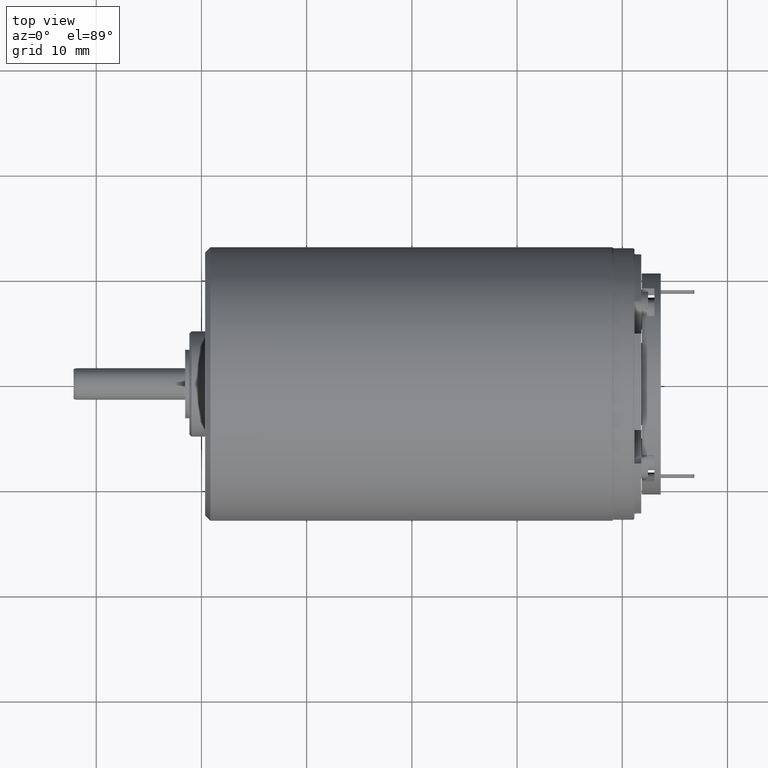
[diagram: clean part render]
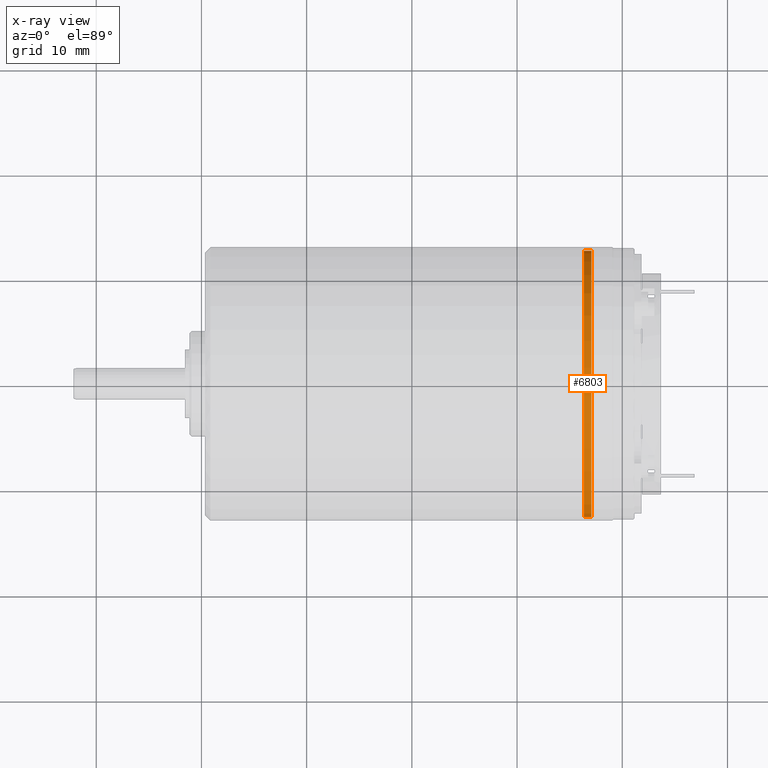
[diagram: x-ray — body ghosted, one internal face saturated and labeled with its STEP entity id]
A machine part, top view, then the same camera in x-ray: the body is ghosted and one INTERNAL B-rep face — a face not visible from any outside direction — is saturated and labeled: STEP entity #6803.
In plain terms, the highlighted cylindrical surface (partial cylindrical patch) has radius 12.65 mm, axis along (1, 0, 0).
Its self-contained STEP definition (entity closure, byte-faithful):
#1868=CARTESIAN_POINT('',(1.635271496615E1,0.E0,0.E0));
#1869=DIRECTION('',(-1.E0,0.E0,0.E0));
#1870=DIRECTION('',(0.E0,-1.E0,0.E0));
#1871=AXIS2_PLACEMENT_3D('',#1868,#1869,#1870);
#1873=CARTESIAN_POINT('',(1.706657684582E1,0.E0,0.E0));
#1874=DIRECTION('',(-1.E0,0.E0,0.E0));
#1875=DIRECTION('',(0.E0,-1.E0,0.E0));
#1876=AXIS2_PLACEMENT_3D('',#1873,#1874,#1875);
#1883=DIRECTION('',(1.E0,4.752798350268E-13,4.961190128392E-13));
#1884=VECTOR('',#1883,7.138618795100E-1);
#1885=CARTESIAN_POINT('',(1.635271496615E1,1.265E1,0.E0));
#1886=LINE('',#1885,#1884);
#1887=DIRECTION('',(-1.E0,4.777682111264E-13,0.E0));
#1888=VECTOR('',#1887,7.138618795100E-1);
#1889=CARTESIAN_POINT('',(1.706657684566E1,-1.265E1,0.E0));
#1890=LINE('',#1889,#1888);
#3758=CARTESIAN_POINT('',(1.706657684582E1,-1.265E1,0.E0));
#3759=VERTEX_POINT('',#3758);
#3760=CARTESIAN_POINT('',(1.635271496615E1,-1.265E1,0.E0));
#3761=CARTESIAN_POINT('',(1.635271496615E1,1.265E1,0.E0));
#3762=VERTEX_POINT('',#3760);
#3763=VERTEX_POINT('',#3761);
#3764=CARTESIAN_POINT('',(1.706657684582E1,1.265E1,0.E0));
#3765=VERTEX_POINT('',#3764);
#6789=CARTESIAN_POINT('',(1.628544638175E1,0.E0,0.E0));
#6790=DIRECTION('',(1.E0,0.E0,0.E0));
#6791=DIRECTION('',(0.E0,-1.E0,0.E0));
#6792=AXIS2_PLACEMENT_3D('',#6789,#6790,#6791);
#6793=CYLINDRICAL_SURFACE('',#6792,1.265E1);
#6794=ORIENTED_EDGE('',*,*,#6783,.F.);
#6796=ORIENTED_EDGE('',*,*,#6795,.F.);
#6798=ORIENTED_EDGE('',*,*,#6797,.T.);
#6800=ORIENTED_EDGE('',*,*,#6799,.F.);
#6801=EDGE_LOOP('',(#6794,#6796,#6798,#6800));
#6802=FACE_OUTER_BOUND('',#6801,.F.);
#6803=ADVANCED_FACE('',(#6802),#6793,.F.);
#1872=CIRCLE('',#1871,1.265E1);
#1877=CIRCLE('',#1876,1.265E1);
#6783=EDGE_CURVE('',#3762,#3763,#1872,.T.);
#6795=EDGE_CURVE('',#3759,#3762,#1890,.T.);
#6797=EDGE_CURVE('',#3759,#3765,#1877,.T.);
#6799=EDGE_CURVE('',#3763,#3765,#1886,.T.);